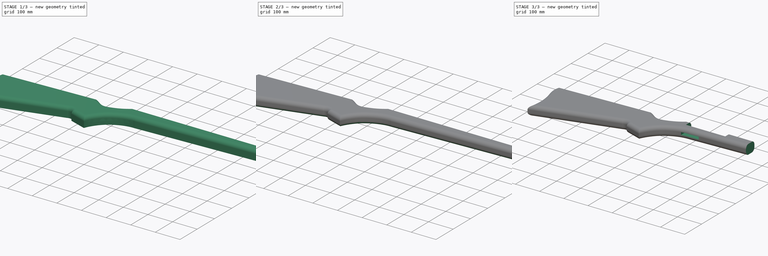
[diagram: build sequence overview — one tinted view per stage of 3, left to right]
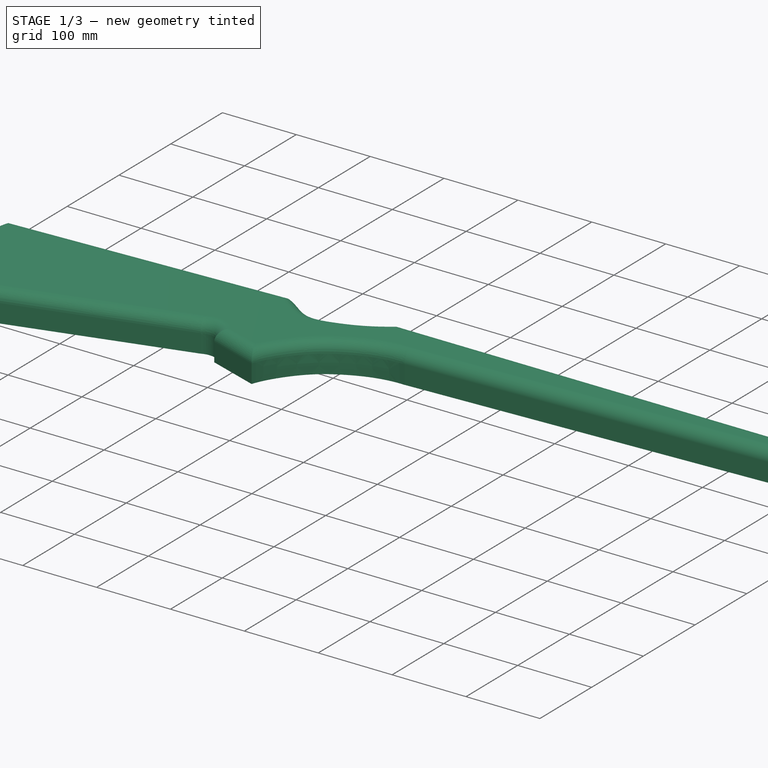
[diagram: stage 1 of 3 — iso view after this stage's code; geometry added in this stage tinted green]
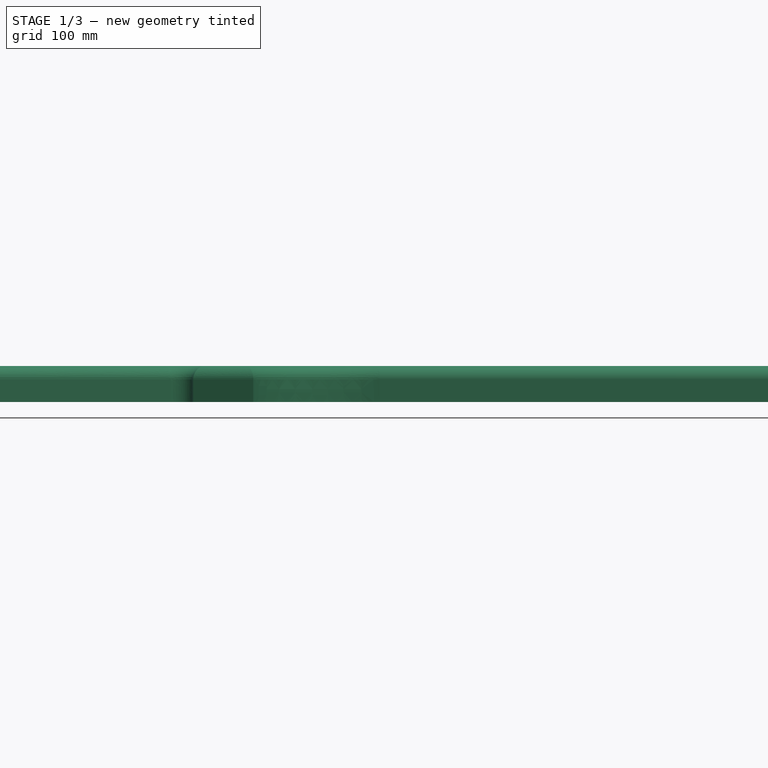
[diagram: stage 1 of 3 — front view after this stage's code; geometry added in this stage tinted green]
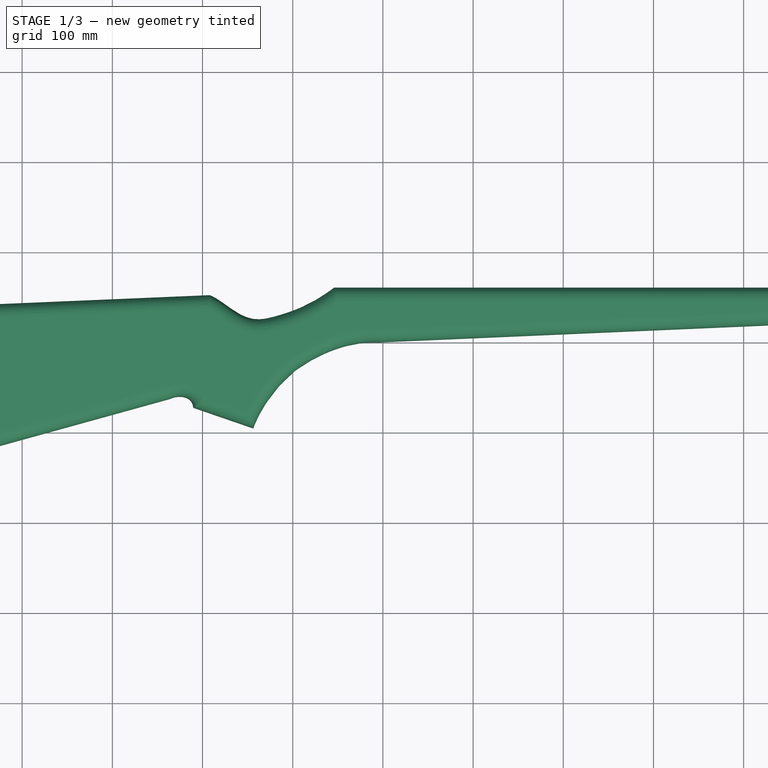
[diagram: stage 1 of 3 — top view after this stage's code; geometry added in this stage tinted green]
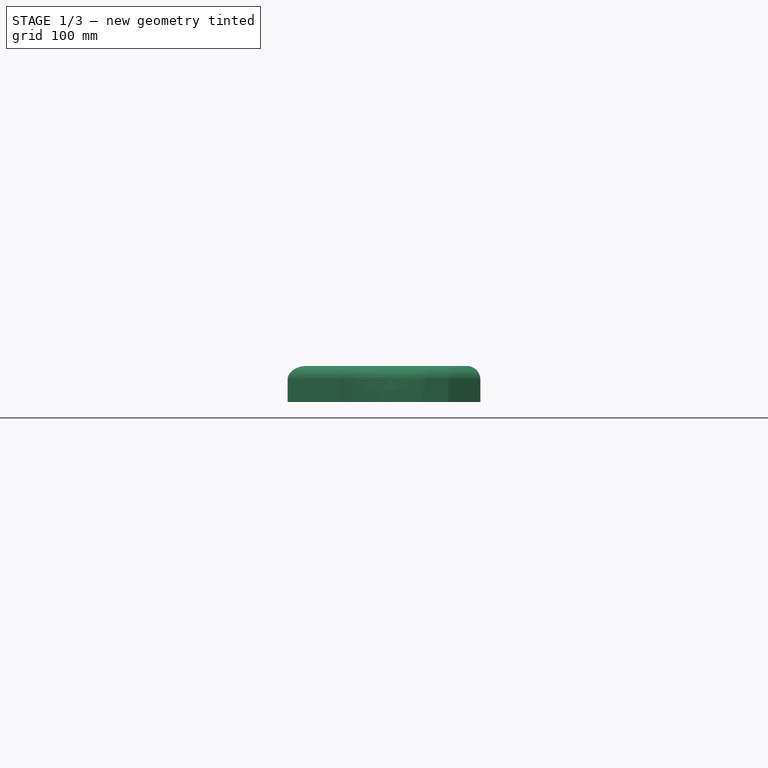
[diagram: stage 1 of 3 — right view after this stage's code; geometry added in this stage tinted green]
FCSTD DOCUMENT  (FreeCAD 1.0R39319 (Git))
Label: gun_stock_polyline_scaled2
License: All rights reserved
LicenseURL: https://en.wikipedia.org/wiki/All_rights_reserved
objects: Sketcher::SketchObject×3, PartDesign::Fillet×2, PartDesign::Plane×2, PartDesign::Pocket×2, PartDesign::Pad×1, PartDesign::Body×1
note: 24 computed .brp shape members not serialized (recipe doc carries the construction recipe); baked Part::Feature solids carry a one-line shape summary decoded from their .brp

FEATURE [Sketcher::SketchObject] Sketch
  ArcFitTolerance = 1e-06
  AttachmentSupport = -> [XY_Plane]
  FullyConstrained = false
  MakeInternals = false
  MapMode = 5
  sketch-geometry (88):
    g0: GeomPoint [constr] X=-765.054 Y=36.4613 Z=0
    g1: GeomPoint [constr] X=-391.792 Y=52.3027 Z=0
    g2: BSplineCurve PolesCount=4 KnotsCount=2 Degree=3 IsPeriodic=0
    g3-g6: Circle [constr] x4 (B-spline internal-alignment scaffolding for g2; pole/knot coordinates omitted)
    g7-g13: GeomPoint [constr] x7 (B-spline internal-alignment scaffolding for g14; pole/knot coordinates omitted)
    g14: BSplineCurve PolesCount=9 KnotsCount=7 Degree=3 IsPeriodic=0
    g15-g23: Circle [constr] x9 (B-spline internal-alignment scaffolding for g14; pole/knot coordinates omitted)
    g24-g30: GeomPoint [constr] x7 (B-spline internal-alignment scaffolding for g31; pole/knot coordinates omitted)
    g31: BSplineCurve PolesCount=9 KnotsCount=7 Degree=3 IsPeriodic=0
    g32-g40: Circle [constr] x9 (B-spline internal-alignment scaffolding for g31; pole/knot coordinates omitted)
    g41: GeomPoint [constr] X=-763.083 Y=-152.954 Z=0
    g42: GeomPoint [constr] X=-435.666 Y=-62.4378 Z=0
    g43: BSplineCurve PolesCount=4 KnotsCount=2 Degree=3 IsPeriodic=0
    g44-g47: Circle [constr] x4 (B-spline internal-alignment scaffolding for g43; pole/knot coordinates omitted)
    g48-g51: GeomPoint [constr] x4 (B-spline internal-alignment scaffolding for g52; pole/knot coordinates omitted)
    g52: BSplineCurve PolesCount=6 KnotsCount=4 Degree=3 IsPeriodic=0
    g53-g58: Circle [constr] x6 (B-spline internal-alignment scaffolding for g52; pole/knot coordinates omitted)
    g59: GeomPoint [constr] X=-410.364 Y=-72.2345 Z=0
    g60: GeomPoint [constr] X=-343.71 Y=-95.1811 Z=0
    g61: BSplineCurve PolesCount=4 KnotsCount=2 Degree=3 IsPeriodic=0
    g62-g65: Circle [constr] x4 (B-spline internal-alignment scaffolding for g61; pole/knot coordinates omitted)
    g66-g73: GeomPoint [constr] x8 (B-spline internal-alignment scaffolding for g74; pole/knot coordinates omitted)
    g74: BSplineCurve PolesCount=10 KnotsCount=8 Degree=3 IsPeriodic=0
    g75-g84: Circle [constr] x10 (B-spline internal-alignment scaffolding for g74; pole/knot coordinates omitted)
    g85: LineSegment StartX=-203.745 StartY=0.22322 StartZ=0 EndX=373.501 EndY=25.363 EndZ=0
    g86: LineSegment StartX=373.501 StartY=25.363 StartZ=0 EndX=373.501 EndY=60.6862 EndZ=0
    g87: LineSegment StartX=373.501 StartY=60.6862 StartZ=0 EndX=-254.166 EndY=60.6862 EndZ=0
  constraints (114):
    c: InternalAlignment(g0,g2)
    c: InternalAlignment(g1,g2)
    c: InternalAlignment(g3,g2)
    c: Weight(g3) = 1
    c: InternalAlignment(g4,g2)
    c: Equal(g4,g3)
    c: InternalAlignment(g5,g2)
    c: Equal(g5,g3)
    c: InternalAlignment(g6,g2)
    c: Equal(g6,g3)
    c: InternalAlignment(g7-g13 -> g14) x7
    c: InternalAlignment(g15,g14)
    c: Weight(g15) = 1
    c: InternalAlignment(g16,g14)
    c: Equal(g16,g15)
    c: InternalAlignment(g17,g14)
    c: Equal(g17,g15)
    c: InternalAlignment(g18,g14)
    c: Equal(g18,g15)
    c: InternalAlignment(g19,g14)
    c: Equal(g19,g15)
    c: InternalAlignment(g20,g14)
    c: Equal(g20,g15)
    c: InternalAlignment(g21,g14)
    c: Equal(g21,g15)
    c: InternalAlignment(g22,g14)
    c: Equal(g22,g15)
    c: InternalAlignment(g23,g14)
    c: Equal(g23,g15)
    c: Coincident(g7,g2)
    c: InternalAlignment(g24-g30 -> g31) x7
    c: InternalAlignment(g32,g31)
    c: Weight(g32) = 1
    c: InternalAlignment(g33,g31)
    c: Equal(g33,g32)
    c: InternalAlignment(g34,g31)
    c: Equal(g34,g32)
    c: InternalAlignment(g35,g31)
    c: Equal(g35,g32)
    c: InternalAlignment(g36,g31)
    c: Equal(g36,g32)
    c: InternalAlignment(g37,g31)
    c: Equal(g37,g32)
    c: InternalAlignment(g38,g31)
    c: Equal(g38,g32)
    c: InternalAlignment(g39,g31)
    c: Equal(g39,g32)
    c: InternalAlignment(g40,g31)
    c: Equal(g40,g32)
    c: Coincident(g24,g2)
    c: InternalAlignment(g41,g43)
    c: InternalAlignment(g42,g43)
    c: InternalAlignment(g44,g43)
    c: Weight(g44) = 1
    c: InternalAlignment(g45,g43)
    c: Equal(g45,g44)
    c: InternalAlignment(g46,g43)
    c: Equal(g46,g44)
    c: InternalAlignment(g47,g43)
    c: Equal(g47,g44)
    c: Coincident(g41,g31)
    c: InternalAlignment(g48-g51 -> g52) x4
    c: InternalAlignment(g53,g52)
    c: Weight(g53) = 1
    c: InternalAlignment(g54,g52)
    c: Equal(g54,g53)
    c: InternalAlignment(g55,g52)
    c: Equal(g55,g53)
    c: InternalAlignment(g56,g52)
    c: Equal(g56,g53)
    c: InternalAlignment(g57,g52)
    c: Equal(g57,g53)
    c: InternalAlignment(g58,g52)
    c: Equal(g58,g53)
    c: Coincident(g48,g43)
    c: InternalAlignment(g59,g61)
    c: InternalAlignment(g60,g61)
    c: InternalAlignment(g62,g61)
    c: Weight(g62) = 1
    c: InternalAlignment(g63,g61)
    c: Equal(g63,g62)
    c: InternalAlignment(g64,g61)
    c: Equal(g64,g62)
    c: InternalAlignment(g65,g61)
    c: Equal(g65,g62)
    c: Coincident(g59,g52)
    c: InternalAlignment(g66-g73 -> g74) x8
    c: InternalAlignment(g75,g74)
    c: Weight(g75) = 1
    c: InternalAlignment(g76,g74)
    c: Equal(g76,g75)
    c: InternalAlignment(g77,g74)
    c: Equal(g77,g75)
    c: InternalAlignment(g78,g74)
    c: Equal(g78,g75)
    c: InternalAlignment(g79,g74)
    c: Equal(g79,g75)
    c: InternalAlignment(g80,g74)
    c: Equal(g80,g75)
    c: InternalAlignment(g81,g74)
    c: Equal(g81,g75)
    c: InternalAlignment(g82,g74)
    c: Equal(g82,g75)
    c: InternalAlignment(g83,g74)
    c: Equal(g83,g75)
    c: InternalAlignment(g84,g74)
    c: Equal(g84,g75)
    c: Coincident(g66,g61)
    c: Coincident(g85,g74)
    c: Coincident(g85,g86)
    c: Vertical(g86)
    c: Coincident(g86,g87)
    c: Coincident(g87,g14)
    c: Horizontal(g87)
FEATURE [PartDesign::Pad] Pad
  Direction = (0,0,1)
  Length = 40
  Length2 = 10
  Profile = -> Sketch
  ReferenceAxis = -> Sketch [N_Axis]
  Refine = true
  Suppressed = false
  Type = 0
FEATURE [PartDesign::Fillet] Fillet
  Base = -> Pad [Face12]
  BaseFeature = -> Pad
  Radius = 15
  Refine = true
  SupportTransform = false
  Suppressed = false
  UseAllEdges = false
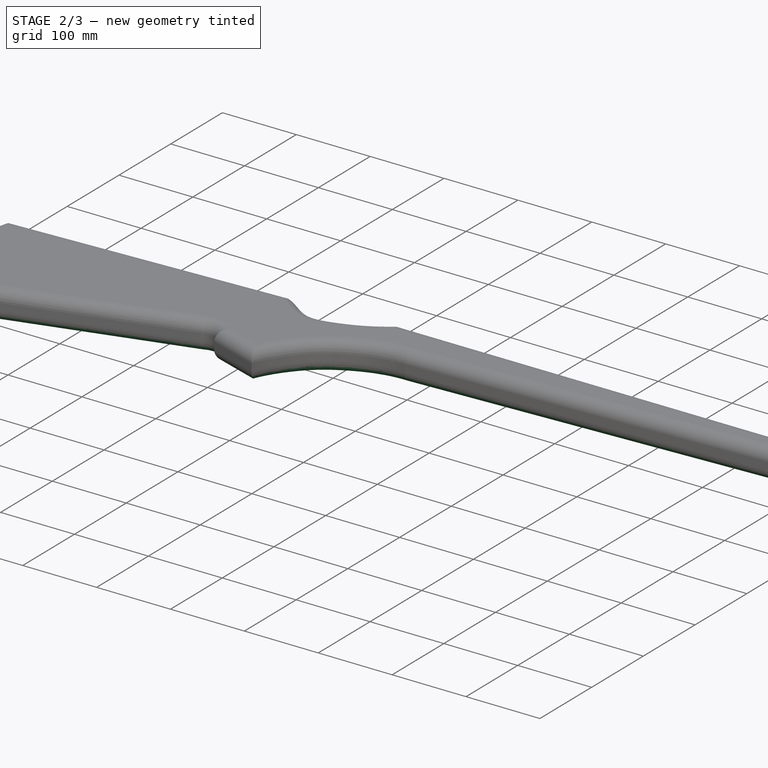
[diagram: stage 2 of 3 — iso view after this stage's code; geometry added in this stage tinted green]
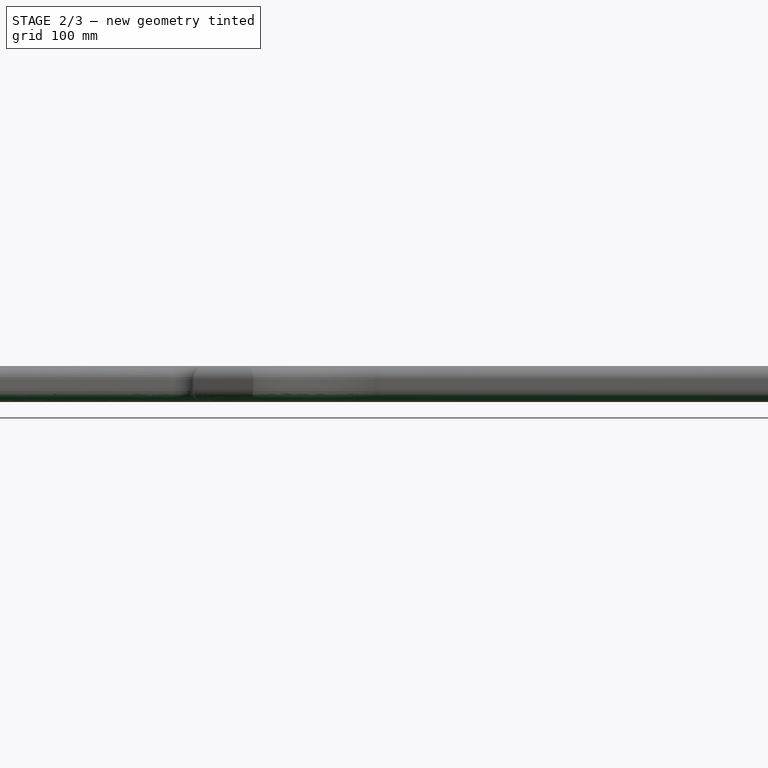
[diagram: stage 2 of 3 — front view after this stage's code; geometry added in this stage tinted green]
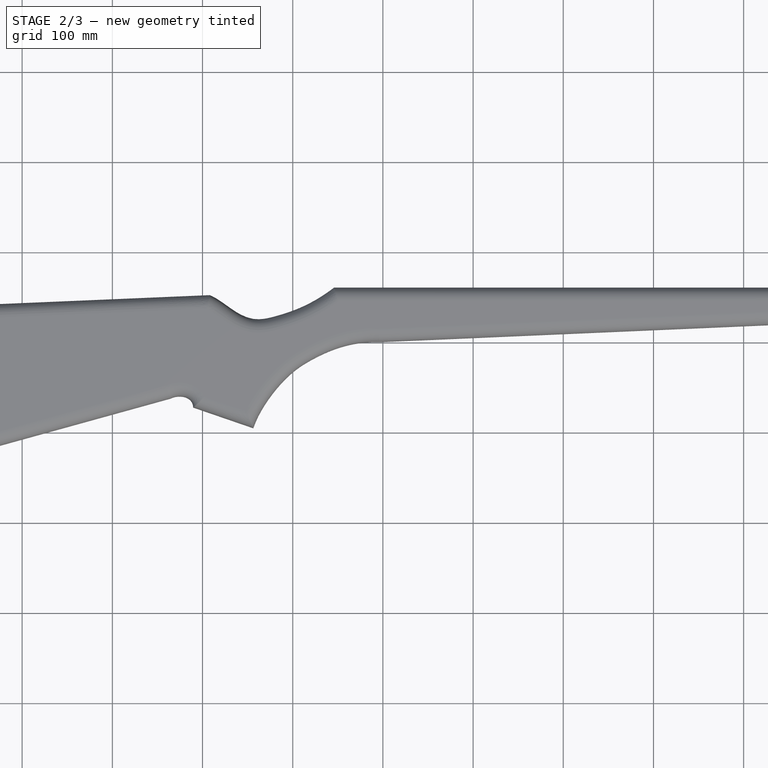
[diagram: stage 2 of 3 — top view after this stage's code; geometry added in this stage tinted green]
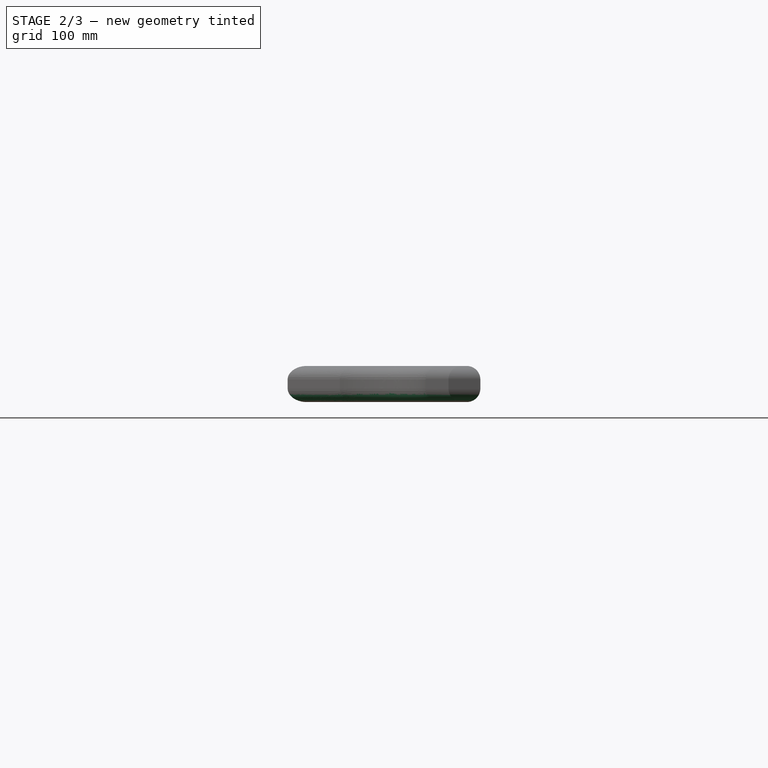
[diagram: stage 2 of 3 — right view after this stage's code; geometry added in this stage tinted green]
FEATURE [PartDesign::Fillet] Fillet001
  Base = -> Fillet [Face4]
  BaseFeature = -> Fillet
  Radius = 15
  Refine = true
  SupportTransform = false
  Suppressed = false
  UseAllEdges = false
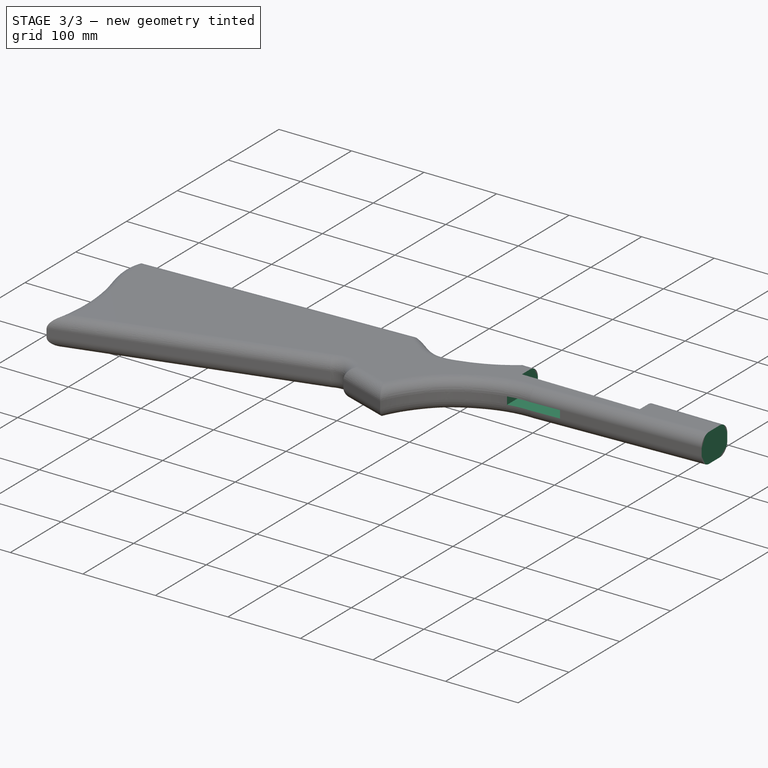
[diagram: stage 3 of 3 — iso view after this stage's code; geometry added in this stage tinted green]
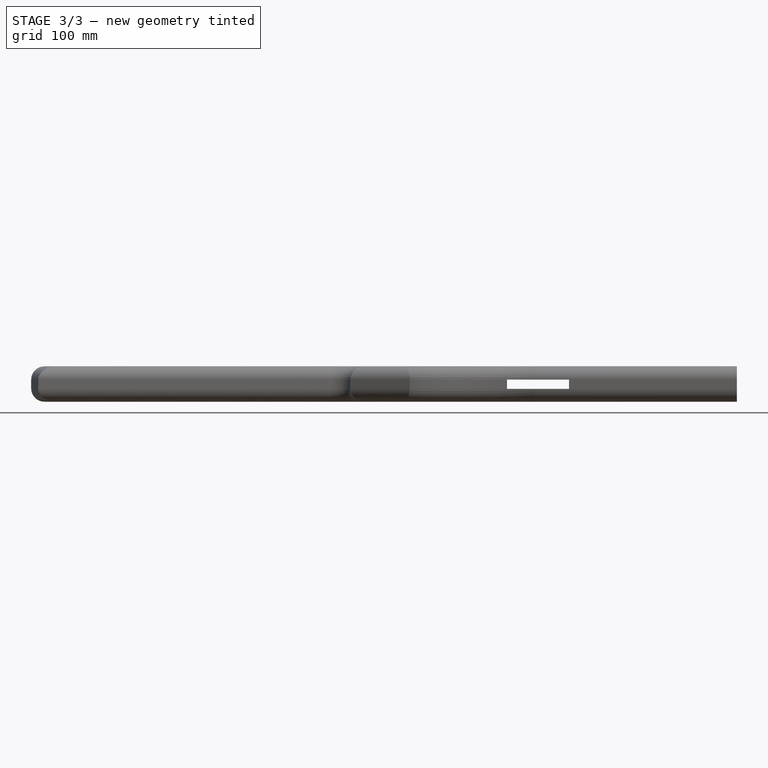
[diagram: stage 3 of 3 — front view after this stage's code; geometry added in this stage tinted green]
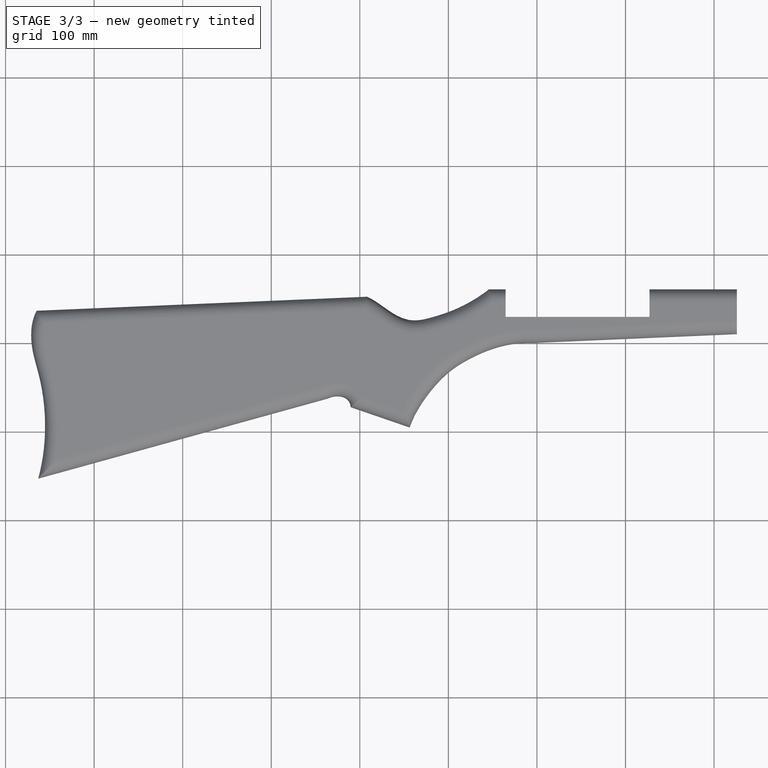
[diagram: stage 3 of 3 — top view after this stage's code; geometry added in this stage tinted green]
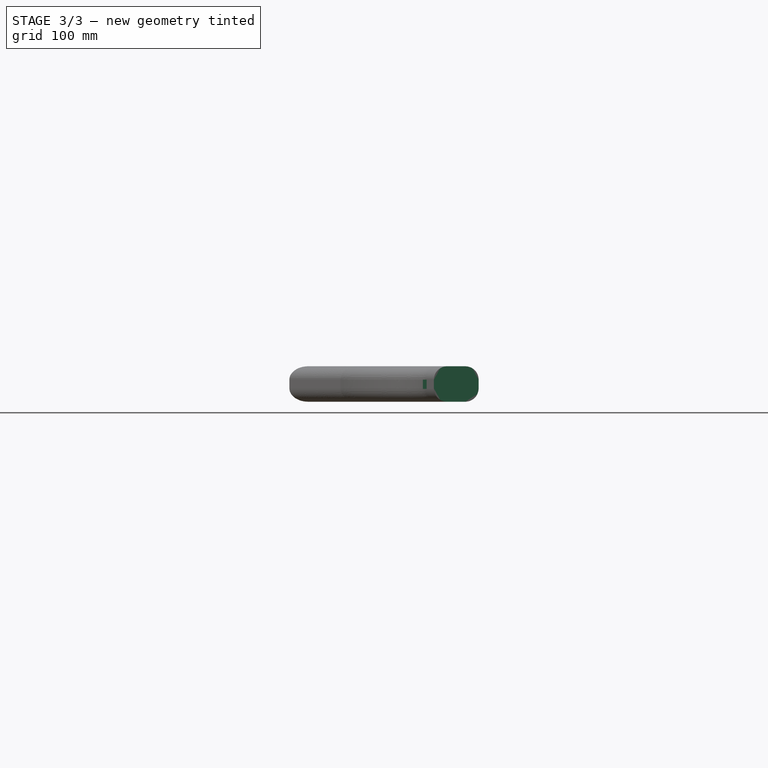
[diagram: stage 3 of 3 — right view after this stage's code; geometry added in this stage tinted green]
FEATURE [PartDesign::Plane] DatumPlane
  AttachmentSupport = -> [Fillet001]
  Length = 879.185
  MapMode = 5
  Placement = pos=(0,0,40) rot=(0,0,1;0rad)
  ResizeMode = 0
  Width = 296.152
FEATURE [Sketcher::SketchObject] Sketch001
  ArcFitTolerance = 1e-06
  AttachmentSupport = -> [DatumPlane]
  FullyConstrained = false
  MakeInternals = false
  MapMode = 5
  Placement = pos=(0,0,40) rot=(0,0,1;0rad)
  sketch-geometry (8):
    g0: LineSegment StartX=25.6846 StartY=87.8511 StartZ=0 EndX=25.6846 EndY=-16.4865 EndZ=0
    g1: LineSegment StartX=25.6846 StartY=-16.4865 StartZ=0 EndX=386.013 EndY=-16.4865 EndZ=0
    g2: LineSegment StartX=386.013 StartY=-16.4865 StartZ=0 EndX=386.013 EndY=87.8511 EndZ=0
    g3: LineSegment StartX=386.013 StartY=87.8511 StartZ=0 EndX=25.6846 EndY=87.8511 EndZ=0
    g4: LineSegment StartX=-235.421 StartY=67.9142 StartZ=0 EndX=-235.421 EndY=29.2959 EndZ=0
    g5: LineSegment StartX=-235.421 StartY=29.2959 StartZ=0 EndX=-72.9572 EndY=29.2959 EndZ=0
    g6: LineSegment StartX=-72.9572 StartY=29.2959 StartZ=0 EndX=-72.9572 EndY=67.9142 EndZ=0
    g7: LineSegment StartX=-72.9572 StartY=67.9142 StartZ=0 EndX=-235.421 EndY=67.9142 EndZ=0
  constraints (16):
    c: Coincident(g0,g1)
    c: Coincident(g1,g2)
    c: Coincident(g2,g3)
    c: Coincident(g3,g0)
    c: Vertical(g0)
    c: Vertical(g2)
    c: Horizontal(g1)
    c: Horizontal(g3)
    c: Coincident(g4,g5)
    c: Coincident(g5,g6)
    c: Coincident(g6,g7)
    c: Coincident(g7,g4)
    c: Vertical(g4)
    c: Vertical(g6)
    c: Horizontal(g5)
    c: Horizontal(g7)
FEATURE [PartDesign::Pocket] Pocket
  BaseFeature = -> Fillet001
  Direction = (0,0,-1)
  Length = 41
  Length2 = 5
  Profile = -> Sketch001
  ReferenceAxis = -> Sketch001 [N_Axis]
  Refine = true
  Suppressed = false
  Type = 0
FEATURE [PartDesign::Plane] DatumPlane001
  AttachmentSupport = -> [Pocket]
  Length = 842.186
  MapMode = 5
  Placement = pos=(0,60.6862,0) rot=(0,0.707107,0.707107;3.14159rad)
  ResizeMode = 0
  Width = 110.512
FEATURE [Sketcher::SketchObject] Sketch002
  ArcFitTolerance = 1e-06
  AttachmentSupport = -> [DatumPlane001]
  FullyConstrained = false
  MakeInternals = false
  MapMode = 5
  Placement = pos=(0,60.6862,0) rot=(0,0.707107,0.707107;3.14159rad)
  sketch-geometry (4):
    g0: LineSegment StartX=233.822 StartY=25.0113 StartZ=0 EndX=163.767 EndY=25.0113 EndZ=0
    g1: LineSegment StartX=163.767 StartY=25.0113 StartZ=0 EndX=163.767 EndY=14.4786 EndZ=0
    g2: LineSegment StartX=163.767 StartY=14.4786 StartZ=0 EndX=233.822 EndY=14.4786 EndZ=0
    g3: LineSegment StartX=233.822 StartY=14.4786 StartZ=0 EndX=233.822 EndY=25.0113 EndZ=0
  constraints (8):
    c: Coincident(g0,g1)
    c: Coincident(g1,g2)
    c: Coincident(g2,g3)
    c: Coincident(g3,g0)
    c: Horizontal(g0)
    c: Horizontal(g2)
    c: Vertical(g1)
    c: Vertical(g3)
FEATURE [PartDesign::Pocket] Pocket001
  BaseFeature = -> Pocket
  Direction = (0,-1,2e-16)
  Length = 65
  Length2 = 5
  Profile = -> Sketch002
  ReferenceAxis = -> Sketch002 [N_Axis]
  Refine = true
  Suppressed = false
  Type = 0
FEATURE [PartDesign::Body] Body
  AllowCompound = false
  Group = -> [Sketch,Pad,Fillet,Fillet001,DatumPlane,Sketch001,Pocket,DatumPlane001,Sketch002,Pocket001]
  Origin = -> Origin
  Tip = -> Pocket001
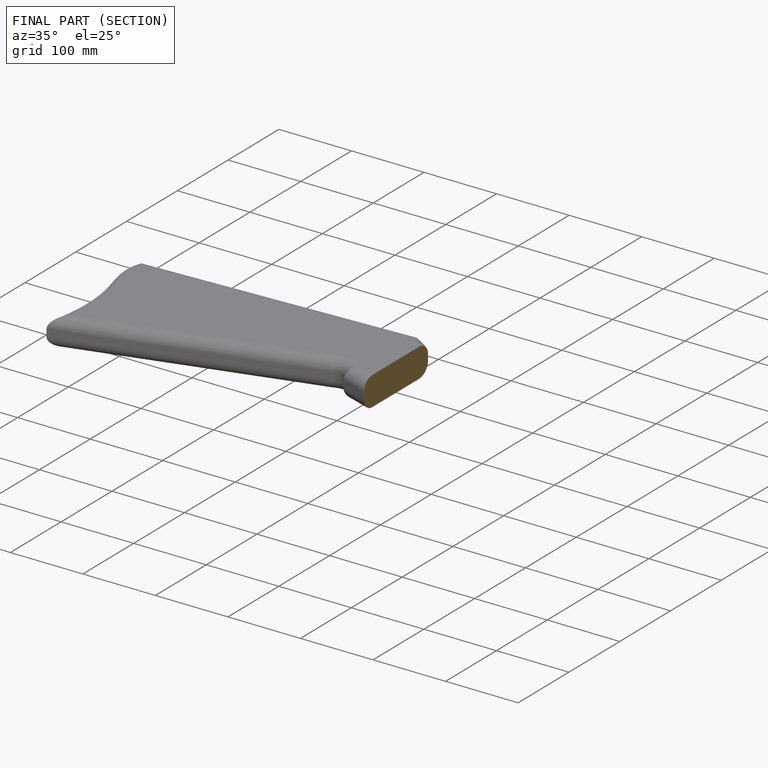
[diagram: finished part — half-section view (interior)]
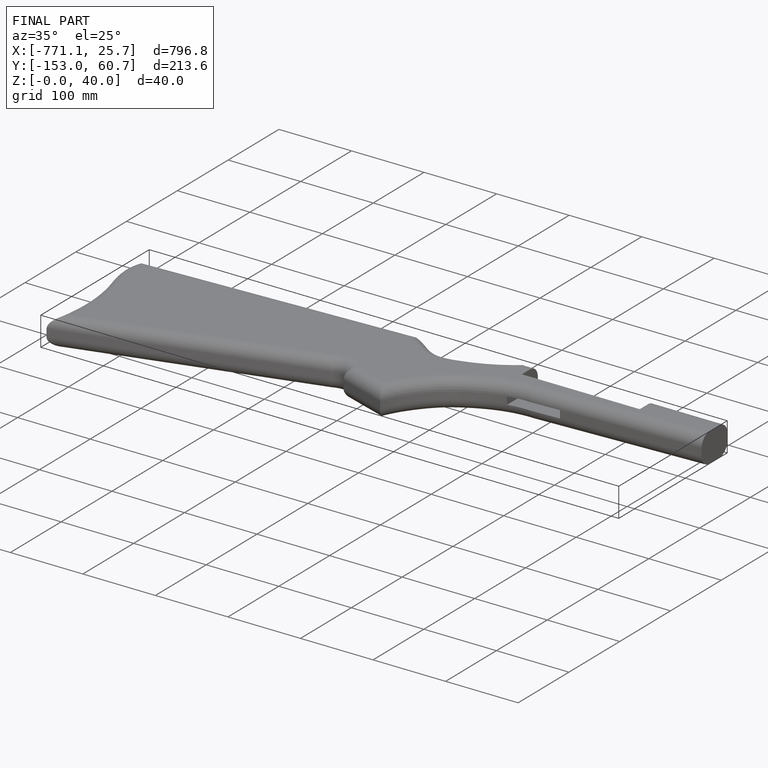
[diagram: finished part — iso view with bounding-box wireframe]
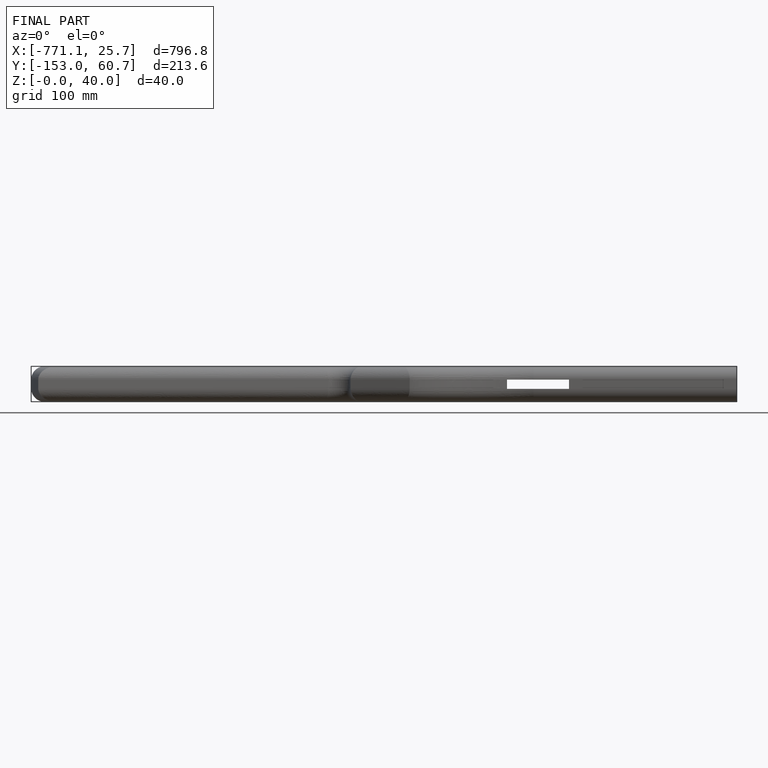
[diagram: finished part — front view with bounding-box wireframe]
